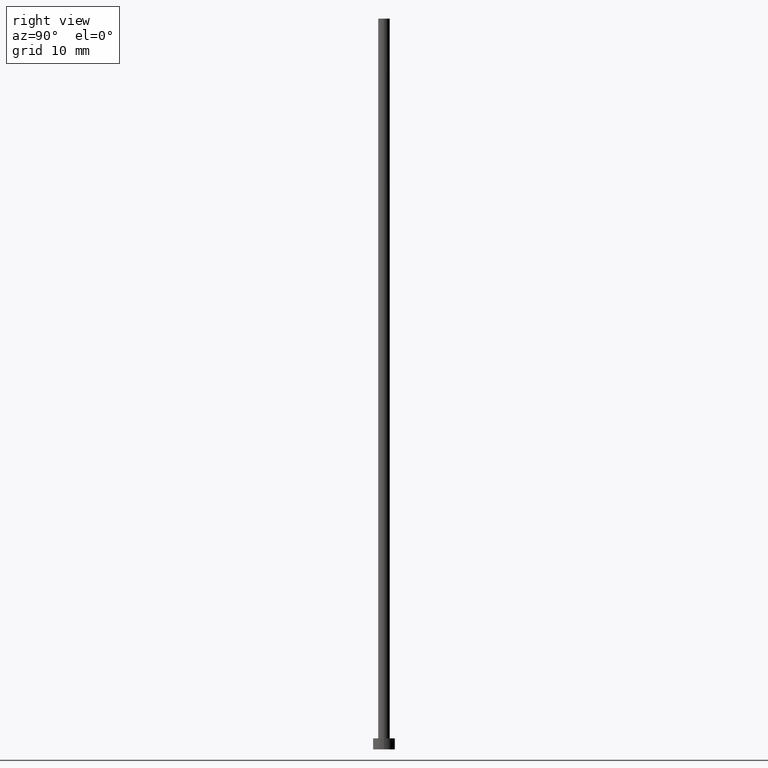
[diagram: clean part render]
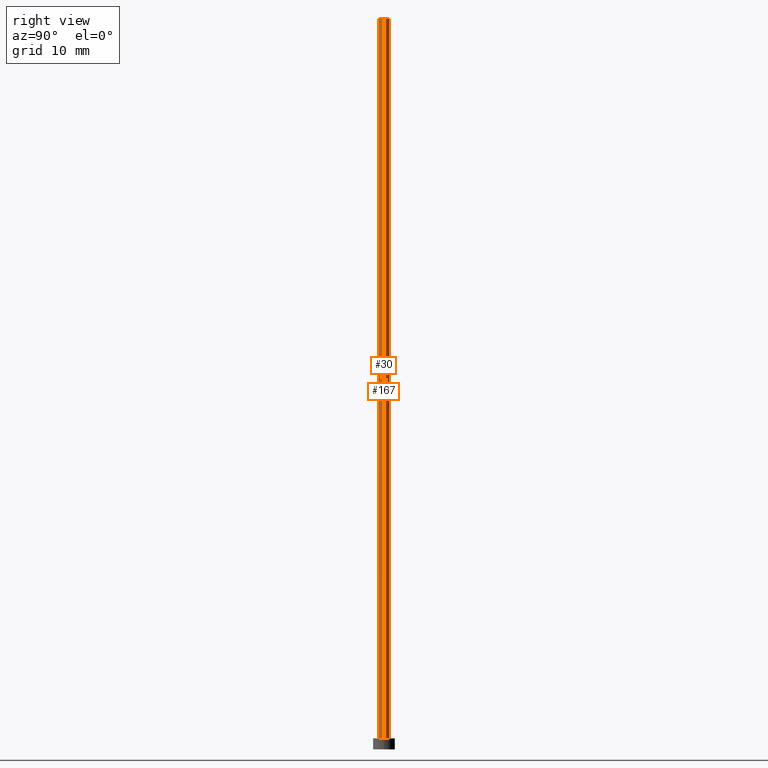
[diagram: same view with one multi-face feature highlighted, each face labeled with its STEP entity id]
A machine part, right view. The highlighted faces form ONE feature: a constant-radius fillet chain: 2 tangent blend faces with common blend radius 0.8 mm. The faces share edges in the B-rep.
Their STEP definitions:
[1] entity #30 (Cylinder):
#2 = VERTEX_POINT ( 'NONE', #179 ) ;
#5 = ORIENTED_EDGE ( 'NONE', *, *, #98, .F. ) ;
#6 = CARTESIAN_POINT ( 'NONE',  ( 0.000000000000000000, 0.000000000000000000, 100.0000000000000000 ) ) ;
#15 = VECTOR ( 'NONE', #140, 1000.000000000000000 ) ;
#26 = CARTESIAN_POINT ( 'NONE',  ( 0.000000000000000000, 0.000000000000000000, 100.0000000000000000 ) ) ;
#29 = DIRECTION ( 'NONE',  ( 1.000000000000000000, 0.000000000000000000, 0.000000000000000000 ) ) ;
#30 = ADVANCED_FACE ( 'NONE', ( #235 ), #74, .T. ) ;
#39 = VERTEX_POINT ( 'NONE', #158 ) ;
#41 = ORIENTED_EDGE ( 'NONE', *, *, #113, .T. ) ;
#42 = CIRCLE ( 'NONE', #48, 0.8000000000000000444 ) ;
#48 = AXIS2_PLACEMENT_3D ( 'NONE', #26, #142, #29 ) ;
#53 = EDGE_LOOP ( 'NONE', ( #220, #5, #93, #41 ) ) ;
#60 = CARTESIAN_POINT ( 'NONE',  ( 0.8000000000000000444, 9.797174393178826150E-17, 100.0000000000000000 ) ) ;
#61 = LINE ( 'NONE', #225, #15 ) ;
#74 = CYLINDRICAL_SURFACE ( 'NONE', #119, 0.8000000000000000444 ) ;
#81 = DIRECTION ( 'NONE',  ( -1.000000000000000000, 0.000000000000000000, 0.000000000000000000 ) ) ;
#93 = ORIENTED_EDGE ( 'NONE', *, *, #247, .T. ) ;
#95 = DIRECTION ( 'NONE',  ( -0.000000000000000000, -0.000000000000000000, -1.000000000000000000 ) ) ;
#98 = EDGE_CURVE ( 'NONE', #39, #2, #42, .T. ) ;
#111 = VERTEX_POINT ( 'NONE', #223 ) ;
#113 = EDGE_CURVE ( 'NONE', #137, #111, #239, .T. ) ;
#119 = AXIS2_PLACEMENT_3D ( 'NONE', #6, #95, #81 ) ;
#122 = AXIS2_PLACEMENT_3D ( 'NONE', #246, #189, #248 ) ;
#137 = VERTEX_POINT ( 'NONE', #205 ) ;
#140 = DIRECTION ( 'NONE',  ( -0.000000000000000000, -0.000000000000000000, -1.000000000000000000 ) ) ;
#142 = DIRECTION ( 'NONE',  ( 0.000000000000000000, 0.000000000000000000, 1.000000000000000000 ) ) ;
#158 = CARTESIAN_POINT ( 'NONE',  ( -0.8000000000000000444, 0.000000000000000000, 100.0000000000000000 ) ) ;
#179 = CARTESIAN_POINT ( 'NONE',  ( 0.8000000000000000444, 9.797174393178826150E-17, 100.0000000000000000 ) ) ;
#189 = DIRECTION ( 'NONE',  ( 0.000000000000000000, 0.000000000000000000, 1.000000000000000000 ) ) ;
#201 = EDGE_CURVE ( 'NONE', #2, #111, #243, .T. ) ;
#205 = CARTESIAN_POINT ( 'NONE',  ( -0.8000000000000000444, 0.000000000000000000, 1.500000000000000000 ) ) ;
#220 = ORIENTED_EDGE ( 'NONE', *, *, #201, .F. ) ;
#223 = CARTESIAN_POINT ( 'NONE',  ( 0.8000000000000000444, 9.797174393178826150E-17, 1.500000000000000000 ) ) ;
#225 = CARTESIAN_POINT ( 'NONE',  ( -0.8000000000000000444, 0.000000000000000000, 100.0000000000000000 ) ) ;
#228 = VECTOR ( 'NONE', #244, 1000.000000000000000 ) ;
#235 = FACE_OUTER_BOUND ( 'NONE', #53, .T. ) ;
#239 = CIRCLE ( 'NONE', #122, 0.8000000000000000444 ) ;
#243 = LINE ( 'NONE', #60, #228 ) ;
#244 = DIRECTION ( 'NONE',  ( -0.000000000000000000, -0.000000000000000000, -1.000000000000000000 ) ) ;
#246 = CARTESIAN_POINT ( 'NONE',  ( 0.000000000000000000, 0.000000000000000000, 1.500000000000000000 ) ) ;
#247 = EDGE_CURVE ( 'NONE', #39, #137, #61, .T. ) ;
#248 = DIRECTION ( 'NONE',  ( 1.000000000000000000, 0.000000000000000000, 0.000000000000000000 ) ) ;
[2] entity #167 (Cylinder):
#2 = VERTEX_POINT ( 'NONE', #179 ) ;
#8 = DIRECTION ( 'NONE',  ( 1.000000000000000000, 0.000000000000000000, 0.000000000000000000 ) ) ;
#15 = VECTOR ( 'NONE', #140, 1000.000000000000000 ) ;
#25 = CARTESIAN_POINT ( 'NONE',  ( 0.000000000000000000, 0.000000000000000000, 1.500000000000000000 ) ) ;
#31 = DIRECTION ( 'NONE',  ( -1.000000000000000000, 0.000000000000000000, 0.000000000000000000 ) ) ;
#39 = VERTEX_POINT ( 'NONE', #158 ) ;
#44 = DIRECTION ( 'NONE',  ( 1.000000000000000000, 0.000000000000000000, 0.000000000000000000 ) ) ;
#54 = AXIS2_PLACEMENT_3D ( 'NONE', #161, #229, #8 ) ;
#60 = CARTESIAN_POINT ( 'NONE',  ( 0.8000000000000000444, 9.797174393178826150E-17, 100.0000000000000000 ) ) ;
#61 = LINE ( 'NONE', #225, #15 ) ;
#64 = DIRECTION ( 'NONE',  ( -0.000000000000000000, -0.000000000000000000, -1.000000000000000000 ) ) ;
#76 = ORIENTED_EDGE ( 'NONE', *, *, #247, .F. ) ;
#85 = CARTESIAN_POINT ( 'NONE',  ( 0.000000000000000000, 0.000000000000000000, 100.0000000000000000 ) ) ;
#87 = FACE_OUTER_BOUND ( 'NONE', #221, .T. ) ;
#105 = DIRECTION ( 'NONE',  ( 0.000000000000000000, 0.000000000000000000, 1.000000000000000000 ) ) ;
#111 = VERTEX_POINT ( 'NONE', #223 ) ;
#127 = CIRCLE ( 'NONE', #54, 0.8000000000000000444 ) ;
#130 = ORIENTED_EDGE ( 'NONE', *, *, #183, .T. ) ;
#132 = EDGE_CURVE ( 'NONE', #2, #39, #127, .T. ) ;
#137 = VERTEX_POINT ( 'NONE', #205 ) ;
#140 = DIRECTION ( 'NONE',  ( -0.000000000000000000, -0.000000000000000000, -1.000000000000000000 ) ) ;
#148 = AXIS2_PLACEMENT_3D ( 'NONE', #85, #64, #31 ) ;
#158 = CARTESIAN_POINT ( 'NONE',  ( -0.8000000000000000444, 0.000000000000000000, 100.0000000000000000 ) ) ;
#161 = CARTESIAN_POINT ( 'NONE',  ( 0.000000000000000000, 0.000000000000000000, 100.0000000000000000 ) ) ;
#165 = AXIS2_PLACEMENT_3D ( 'NONE', #25, #105, #44 ) ;
#167 = ADVANCED_FACE ( 'NONE', ( #87 ), #184, .T. ) ;
#179 = CARTESIAN_POINT ( 'NONE',  ( 0.8000000000000000444, 9.797174393178826150E-17, 100.0000000000000000 ) ) ;
#183 = EDGE_CURVE ( 'NONE', #111, #137, #252, .T. ) ;
#184 = CYLINDRICAL_SURFACE ( 'NONE', #148, 0.8000000000000000444 ) ;
#198 = ORIENTED_EDGE ( 'NONE', *, *, #201, .T. ) ;
#201 = EDGE_CURVE ( 'NONE', #2, #111, #243, .T. ) ;
#205 = CARTESIAN_POINT ( 'NONE',  ( -0.8000000000000000444, 0.000000000000000000, 1.500000000000000000 ) ) ;
#221 = EDGE_LOOP ( 'NONE', ( #255, #198, #130, #76 ) ) ;
#223 = CARTESIAN_POINT ( 'NONE',  ( 0.8000000000000000444, 9.797174393178826150E-17, 1.500000000000000000 ) ) ;
#225 = CARTESIAN_POINT ( 'NONE',  ( -0.8000000000000000444, 0.000000000000000000, 100.0000000000000000 ) ) ;
#228 = VECTOR ( 'NONE', #244, 1000.000000000000000 ) ;
#229 = DIRECTION ( 'NONE',  ( 0.000000000000000000, 0.000000000000000000, 1.000000000000000000 ) ) ;
#243 = LINE ( 'NONE', #60, #228 ) ;
#244 = DIRECTION ( 'NONE',  ( -0.000000000000000000, -0.000000000000000000, -1.000000000000000000 ) ) ;
#247 = EDGE_CURVE ( 'NONE', #39, #137, #61, .T. ) ;
#252 = CIRCLE ( 'NONE', #165, 0.8000000000000000444 ) ;
#255 = ORIENTED_EDGE ( 'NONE', *, *, #132, .F. ) ;